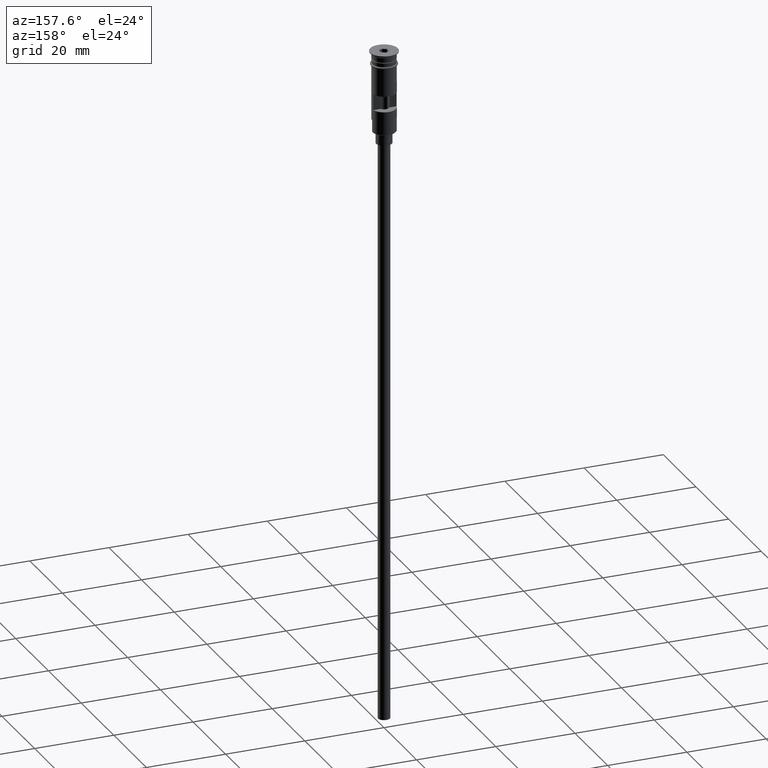
[diagram: clean part render]
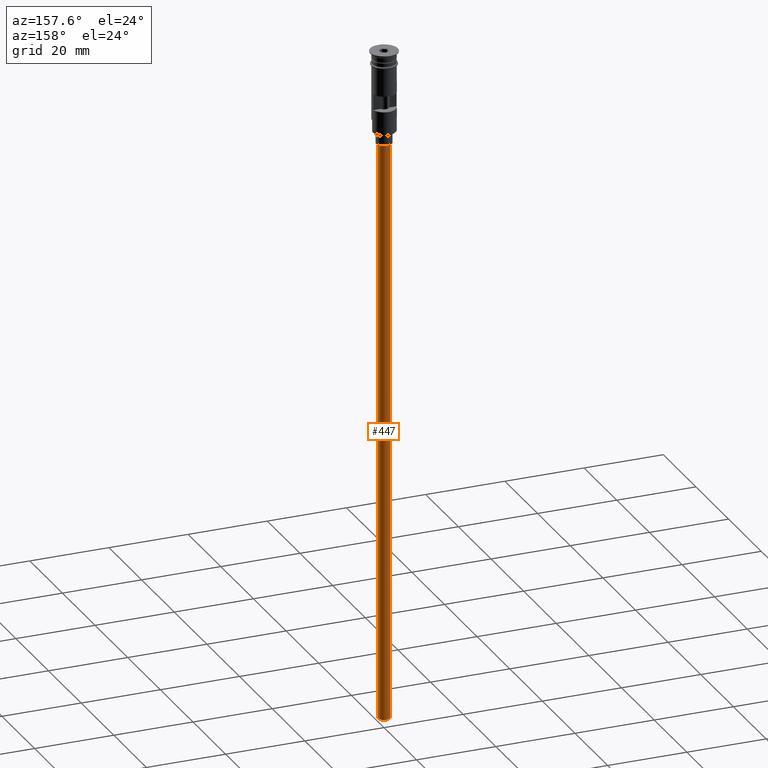
[diagram: same view with one face highlighted and labeled with its STEP entity id]
A machine part, auxiliary view. The second image highlights one B-rep face of the part: STEP entity #447.
In plain terms, the highlighted cylindrical surface (edge-blend (fillet) strip) has radius 1.5 mm, axis along (-0, -0, 1).
Its self-contained STEP definition (entity closure, byte-faithful):
#27 = CARTESIAN_POINT ( 'NONE',  ( -1.500000000000000222, 1.836970198721030181E-16, -170.4999999999999716 ) ) ;
#53 = DIRECTION ( 'NONE',  ( 0.000000000000000000, 0.000000000000000000, -1.000000000000000000 ) ) ;
#134 = LINE ( 'NONE', #27, #1558 ) ;
#293 = VERTEX_POINT ( 'NONE', #1327 ) ;
#299 = DIRECTION ( 'NONE',  ( -1.000000000000000000, 0.000000000000000000, 0.000000000000000000 ) ) ;
#330 = EDGE_LOOP ( 'NONE', ( #745, #634, #360, #1503 ) ) ;
#343 = AXIS2_PLACEMENT_3D ( 'NONE', #1412, #53, #299 ) ;
#360 = ORIENTED_EDGE ( 'NONE', *, *, #544, .T. ) ;
#371 = VERTEX_POINT ( 'NONE', #855 ) ;
#401 = DIRECTION ( 'NONE',  ( -0.000000000000000000, -0.000000000000000000, 1.000000000000000000 ) ) ;
#447 = ADVANCED_FACE ( 'NONE', ( #1506 ), #1147, .T. ) ;
#518 = EDGE_CURVE ( 'NONE', #371, #1334, #134, .T. ) ;
#526 = DIRECTION ( 'NONE',  ( 0.000000000000000000, 0.000000000000000000, -1.000000000000000000 ) ) ;
#544 = EDGE_CURVE ( 'NONE', #1334, #1346, #1429, .T. ) ;
#634 = ORIENTED_EDGE ( 'NONE', *, *, #518, .T. ) ;
#645 = CARTESIAN_POINT ( 'NONE',  ( 0.000000000000000000, 0.000000000000000000, -23.50000000000000000 ) ) ;
#649 = DIRECTION ( 'NONE',  ( -0.000000000000000000, -0.000000000000000000, 1.000000000000000000 ) ) ;
#655 = CARTESIAN_POINT ( 'NONE',  ( 0.000000000000000000, 0.000000000000000000, -170.4999999999999716 ) ) ;
#726 = AXIS2_PLACEMENT_3D ( 'NONE', #645, #526, #1027 ) ;
#745 = ORIENTED_EDGE ( 'NONE', *, *, #1436, .F. ) ;
#855 = CARTESIAN_POINT ( 'NONE',  ( -1.500000000000000222, 1.836970198721030181E-16, -170.4999999999999716 ) ) ;
#881 = CARTESIAN_POINT ( 'NONE',  ( -1.500000000000000222, 1.836970198721030181E-16, -23.50000000000000000 ) ) ;
#900 = DIRECTION ( 'NONE',  ( 1.000000000000000000, 0.000000000000000000, 0.000000000000000000 ) ) ;
#1027 = DIRECTION ( 'NONE',  ( -1.000000000000000000, 0.000000000000000000, 0.000000000000000000 ) ) ;
#1044 = CIRCLE ( 'NONE', #343, 1.500000000000000222 ) ;
#1140 = CARTESIAN_POINT ( 'NONE',  ( 1.500000000000000222, 0.000000000000000000, -23.50000000000000000 ) ) ;
#1147 = CYLINDRICAL_SURFACE ( 'NONE', #1483, 1.500000000000000222 ) ;
#1313 = EDGE_CURVE ( 'NONE', #293, #1346, #1389, .T. ) ;
#1327 = CARTESIAN_POINT ( 'NONE',  ( 1.500000000000000222, 0.000000000000000000, -170.4999999999999716 ) ) ;
#1334 = VERTEX_POINT ( 'NONE', #881 ) ;
#1346 = VERTEX_POINT ( 'NONE', #1140 ) ;
#1370 = DIRECTION ( 'NONE',  ( -0.000000000000000000, -0.000000000000000000, 1.000000000000000000 ) ) ;
#1389 = LINE ( 'NONE', #1395, #1513 ) ;
#1395 = CARTESIAN_POINT ( 'NONE',  ( 1.500000000000000222, 0.000000000000000000, -170.4999999999999716 ) ) ;
#1412 = CARTESIAN_POINT ( 'NONE',  ( 0.000000000000000000, 0.000000000000000000, -170.4999999999999716 ) ) ;
#1429 = CIRCLE ( 'NONE', #726, 1.500000000000000222 ) ;
#1436 = EDGE_CURVE ( 'NONE', #371, #293, #1044, .T. ) ;
#1483 = AXIS2_PLACEMENT_3D ( 'NONE', #655, #401, #900 ) ;
#1503 = ORIENTED_EDGE ( 'NONE', *, *, #1313, .F. ) ;
#1506 = FACE_OUTER_BOUND ( 'NONE', #330, .T. ) ;
#1513 = VECTOR ( 'NONE', #649, 1000.000000000000000 ) ;
#1558 = VECTOR ( 'NONE', #1370, 1000.000000000000000 ) ;